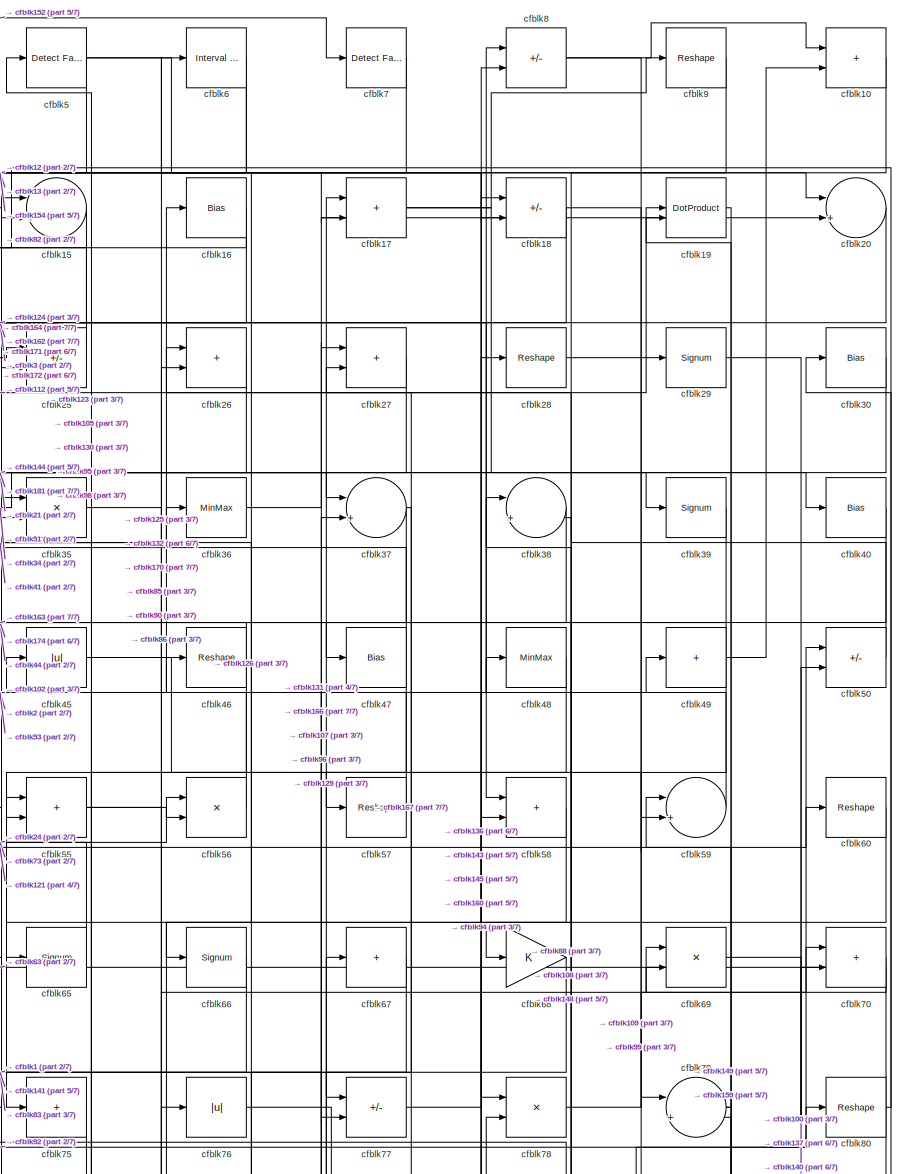
[diagram: root canvas - part 1/7, top right region]
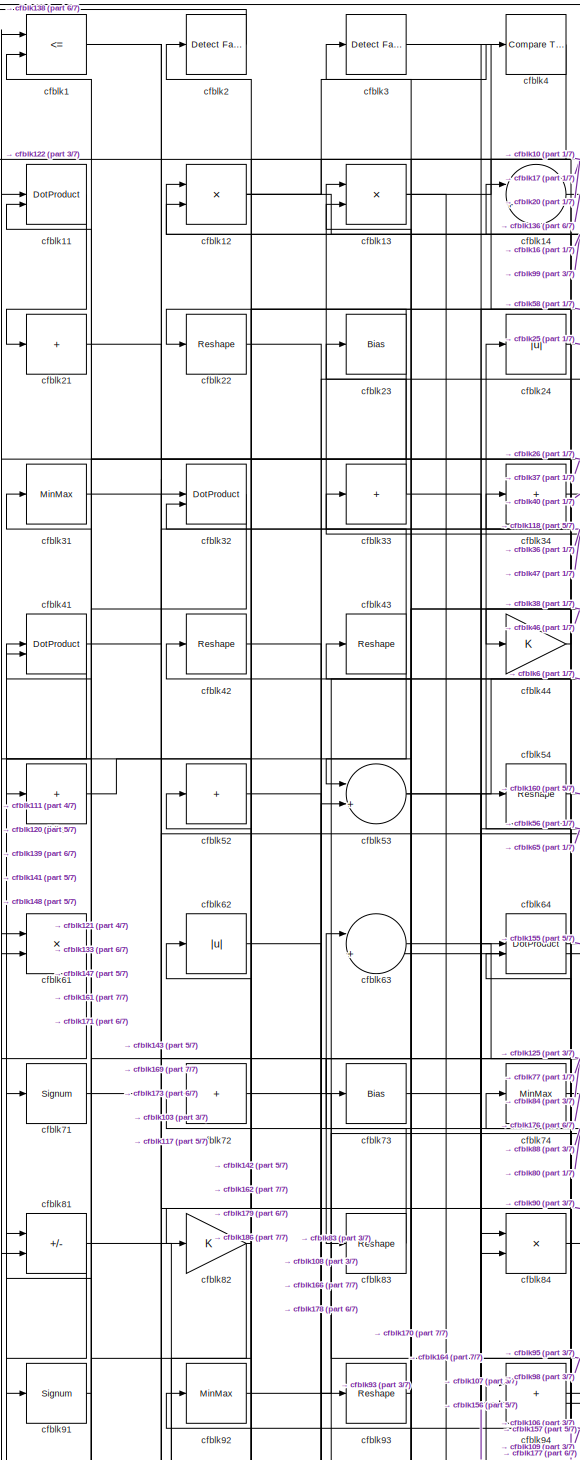
[diagram: root canvas - part 2/7, top left region]
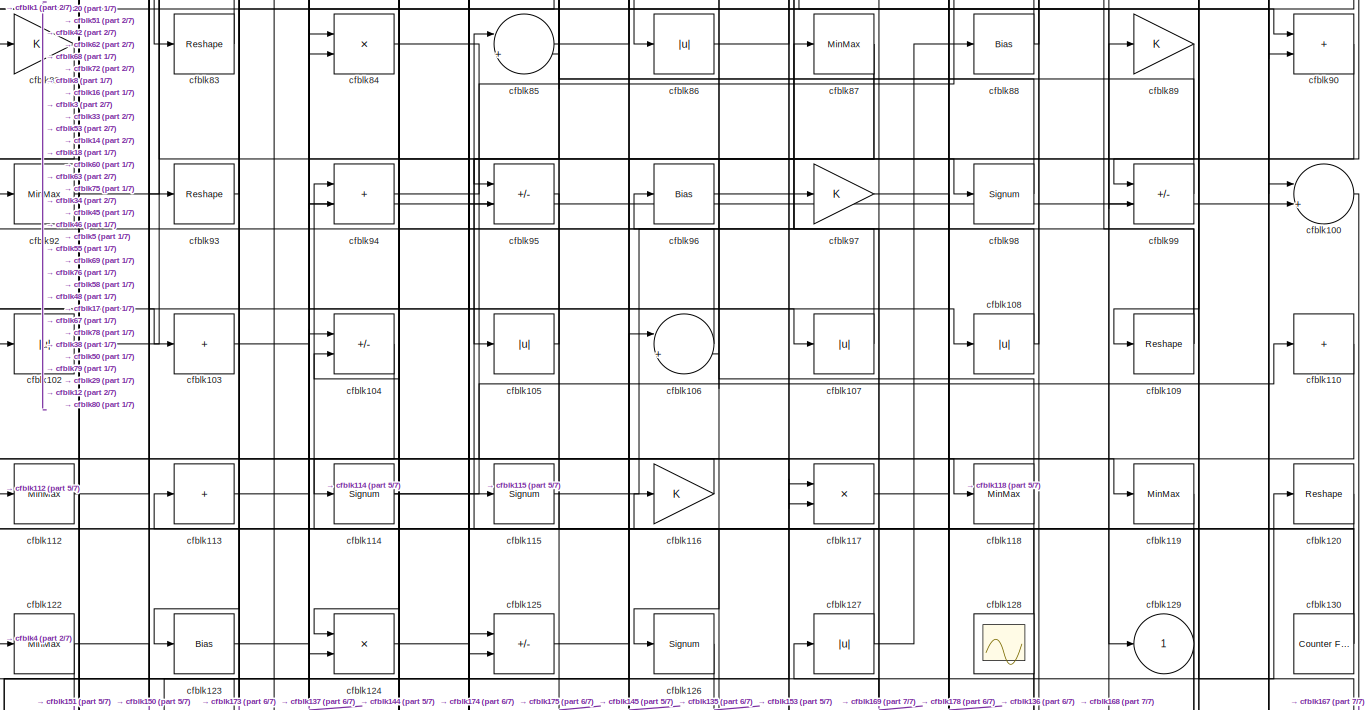
[diagram: root canvas - part 3/7, full width, middle band]
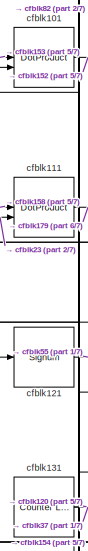
[diagram: root canvas - part 4/7, middle left region]
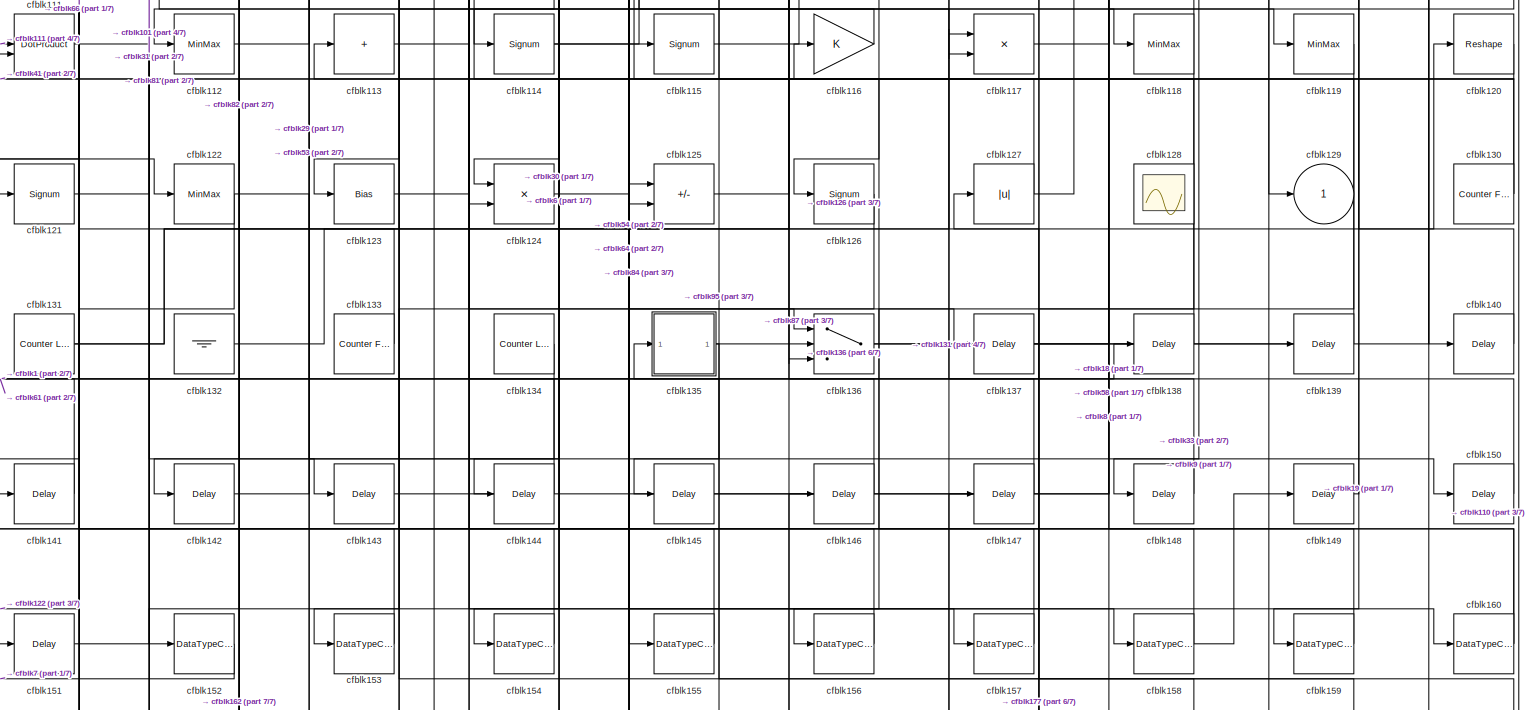
[diagram: root canvas - part 5/7, full width, bottom band]
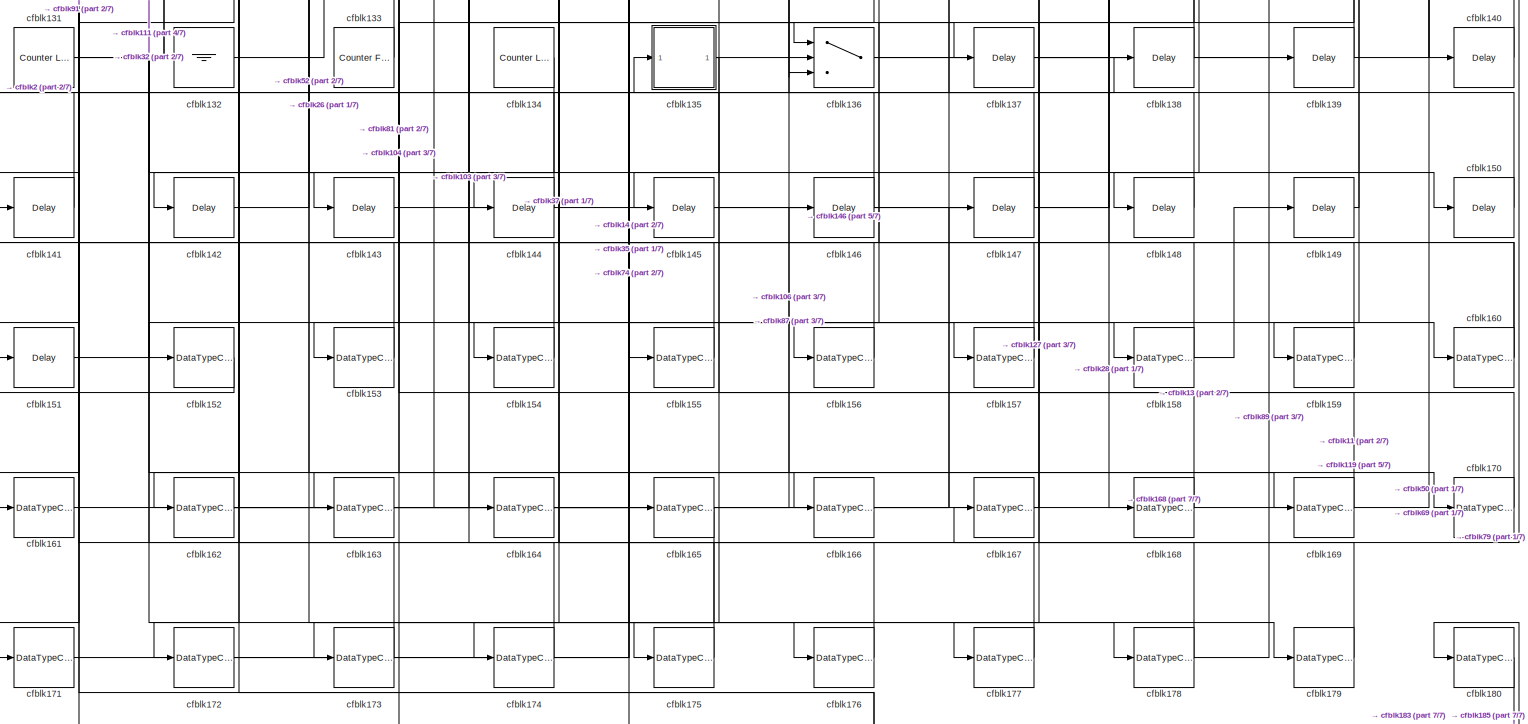
[diagram: root canvas - part 6/7, full width, bottom band]
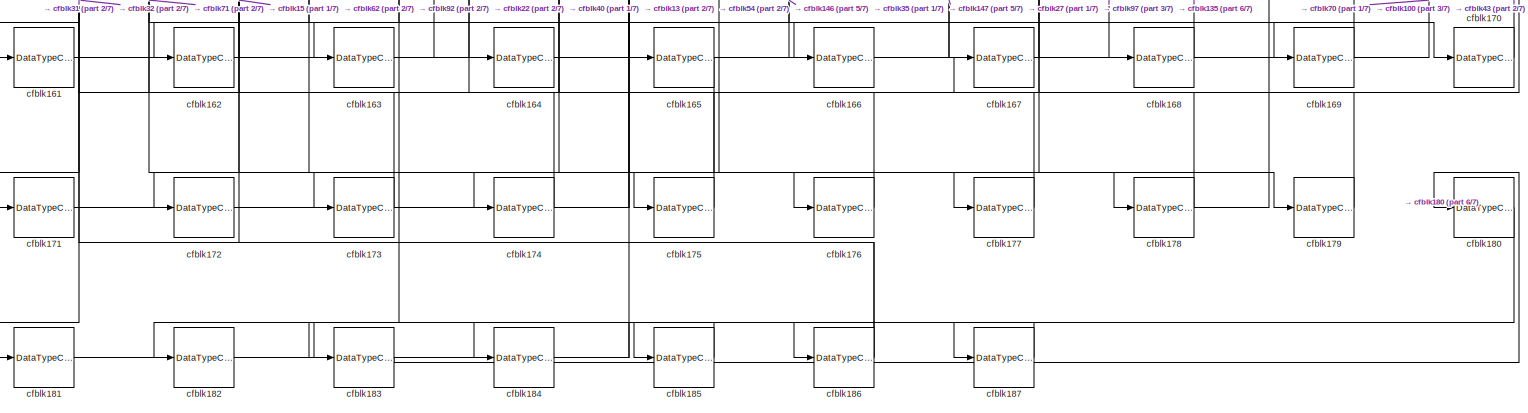
[diagram: root canvas - part 7/7, full width, bottom band]
MODEL slx_10a0aa7fb3e2
KIND model
CONFIG AbsTol = auto
CONFIG EnableMultiTasking = off
CONFIG FixedStep = auto
CONFIG MaxStep = auto
CONFIG MinStep = auto
CONFIG RelTol = 1e-3
CONFIG SampleTimeConstraint = Unconstrained
CONFIG SolverName = VariableStepAuto
CONFIG StartTime = 0.0
CONFIG StopTime = 10.0
BLOCK [RelationalOperator] cfblk1
  InputSameDT = off
  Operator = <=
  OutDataTypeStr = boolean
BLOCK [Sum] cfblk10
  IconShape = rectangular
BLOCK [Sum] cfblk100
  Inputs = |++
BLOCK [DotProduct] cfblk101
  OutDataTypeStr = Inherit: Inherit via internal rule
BLOCK [Abs] cfblk102
  SaturateOnIntegerOverflow = off
BLOCK [Sum] cfblk103
  IconShape = rectangular
  Inputs = +
BLOCK [Sum] cfblk104
  IconShape = rectangular
  Inputs = +-
BLOCK [Abs] cfblk105
  SaturateOnIntegerOverflow = off
BLOCK [Sum] cfblk106
  Inputs = |++
BLOCK [Abs] cfblk107
  SaturateOnIntegerOverflow = off
BLOCK [Abs] cfblk108
  SaturateOnIntegerOverflow = off
BLOCK [Reshape] cfblk109
BLOCK [DotProduct] cfblk11
  OutDataTypeStr = Inherit: Inherit via internal rule
BLOCK [Sum] cfblk110
  IconShape = rectangular
  Inputs = +
BLOCK [DotProduct] cfblk111
  OutDataTypeStr = Inherit: Inherit via internal rule
BLOCK [MinMax] cfblk112
BLOCK [Sum] cfblk113
  IconShape = rectangular
  Inputs = +
BLOCK [Signum] cfblk114
BLOCK [Signum] cfblk115
BLOCK [Gain] cfblk116
BLOCK [Product] cfblk117
  Inputs = */
  RndMeth = Zero
  SaturateOnIntegerOverflow = on
BLOCK [MinMax] cfblk118
BLOCK [MinMax] cfblk119
BLOCK [Product] cfblk12
  Inputs = */
  RndMeth = Zero
  SaturateOnIntegerOverflow = on
BLOCK [Reshape] cfblk120
BLOCK [Signum] cfblk121
BLOCK [MinMax] cfblk122
BLOCK [Bias] cfblk123
  Bias = 0.0
  SaturateOnIntegerOverflow = off
BLOCK [Product] cfblk124
  Inputs = */
  RndMeth = Zero
  SaturateOnIntegerOverflow = on
BLOCK [Sum] cfblk125
  IconShape = rectangular
  Inputs = +-
BLOCK [Signum] cfblk126
BLOCK [Abs] cfblk127
  SaturateOnIntegerOverflow = off
BLOCK [Scope] cfblk128
  Floating = on
  NumInputPorts = 1
  ScopeSpecificationString = Simulink.scopes.TimeScopeBlockCfg('CurrentConfiguration', extmgr.ConfigurationSet(extmgr.Configuration('Core','General UI',true,'FigureColor',[0.156862745098039 0.156862745098039 0.156862745098039]),extmgr.Configuration('Core','Source UI',true),extmgr.Configuration('Sources','WiredSimulink',true,'DataLoggingVariableName','ScopeData1','DataLoggingSaveFormat','StructureWithTime','DataLoggingLimitDat...<+2713ch>
BLOCK [Outport] cfblk129
  VectorParamsAs1DForOutWhenUnconnected = off
BLOCK [Product] cfblk13
  Inputs = */
  RndMeth = Zero
  SaturateOnIntegerOverflow = on
BLOCK [Reference] cfblk130  REF=hdlsllib/Sources/Counter
Free-Running
  SourceBlock = hdlsllib/Sources/Counter\nFree-Running
  SourceType = Counter Free-Running
BLOCK [Reference] cfblk131  REF=hdlsllib/Sources/Counter
Limited
  SourceBlock = hdlsllib/Sources/Counter\nLimited
  SourceType = Counter Limited
BLOCK [Ground] cfblk132
BLOCK [Reference] cfblk133  REF=hdlsllib/Sources/Counter
Free-Running
  SourceBlock = hdlsllib/Sources/Counter\nFree-Running
  SourceType = Counter Free-Running
BLOCK [Reference] cfblk134  REF=hdlsllib/Sources/Counter
Limited
  SourceBlock = hdlsllib/Sources/Counter\nLimited
  SourceType = Counter Limited
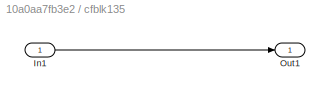
BLOCK [SubSystem] cfblk135
  LibrarySourceBlock = hdlsllib/Ports &\nSubsystems/Subsystem
BLOCK [Inport] cfblk135/In1
BLOCK [Outport] cfblk135/Out1
BLOCK [Switch] cfblk136
  InputSameDT = off
  SaturateOnIntegerOverflow = off
BLOCK [Delay] cfblk137
  InputPortMap = u0
  SampleTime = 1
BLOCK [Delay] cfblk138
  InputPortMap = u0
  SampleTime = 1
BLOCK [Delay] cfblk139
  InputPortMap = u0
  SampleTime = 1
BLOCK [Sum] cfblk14
  Inputs = |++
BLOCK [Delay] cfblk140
  InputPortMap = u0
  SampleTime = 1
BLOCK [Delay] cfblk141
  InputPortMap = u0
  SampleTime = 1
BLOCK [Delay] cfblk142
  InputPortMap = u0
  SampleTime = 1
BLOCK [Delay] cfblk143
  InputPortMap = u0
  SampleTime = 1
BLOCK [Delay] cfblk144
  InputPortMap = u0
  SampleTime = 1
BLOCK [Delay] cfblk145
  InputPortMap = u0
  SampleTime = 1
BLOCK [Delay] cfblk146
  InputPortMap = u0
  SampleTime = 1
BLOCK [Delay] cfblk147
  InputPortMap = u0
  SampleTime = 1
BLOCK [Delay] cfblk148
  InputPortMap = u0
  SampleTime = 1
BLOCK [Delay] cfblk149
  InputPortMap = u0
  SampleTime = 1
BLOCK [Sum] cfblk15
  Inputs = |++
BLOCK [Delay] cfblk150
  InputPortMap = u0
  SampleTime = 1
BLOCK [Delay] cfblk151
  InputPortMap = u0
  SampleTime = 1
BLOCK [DataTypeConversion] cfblk152
  OutDataTypeStr = uint8
  RndMeth = Floor
  SaturateOnIntegerOverflow = off
BLOCK [DataTypeConversion] cfblk153
  OutDataTypeStr = uint8
  RndMeth = Floor
  SaturateOnIntegerOverflow = off
BLOCK [DataTypeConversion] cfblk154
  OutDataTypeStr = uint8
  RndMeth = Floor
  SaturateOnIntegerOverflow = off
BLOCK [DataTypeConversion] cfblk155
  OutDataTypeStr = uint8
  RndMeth = Floor
  SaturateOnIntegerOverflow = off
BLOCK [DataTypeConversion] cfblk156
  OutDataTypeStr = uint8
  RndMeth = Floor
  SaturateOnIntegerOverflow = off
BLOCK [DataTypeConversion] cfblk157
  OutDataTypeStr = uint8
  RndMeth = Floor
  SaturateOnIntegerOverflow = off
BLOCK [DataTypeConversion] cfblk158
  RndMeth = Floor
  SaturateOnIntegerOverflow = off
BLOCK [DataTypeConversion] cfblk159
  OutDataTypeStr = uint8
  RndMeth = Floor
  SaturateOnIntegerOverflow = off
BLOCK [Bias] cfblk16
  Bias = 0.0
  SaturateOnIntegerOverflow = off
BLOCK [DataTypeConversion] cfblk160
  RndMeth = Floor
  SaturateOnIntegerOverflow = off
BLOCK [DataTypeConversion] cfblk161
  OutDataTypeStr = uint8
  RndMeth = Floor
  SaturateOnIntegerOverflow = off
BLOCK [DataTypeConversion] cfblk162
  RndMeth = Floor
  SaturateOnIntegerOverflow = off
BLOCK [DataTypeConversion] cfblk163
  OutDataTypeStr = uint8
  RndMeth = Floor
  SaturateOnIntegerOverflow = off
BLOCK [DataTypeConversion] cfblk164
  OutDataTypeStr = uint8
  RndMeth = Floor
  SaturateOnIntegerOverflow = off
BLOCK [DataTypeConversion] cfblk165
  RndMeth = Floor
  SaturateOnIntegerOverflow = off
BLOCK [DataTypeConversion] cfblk166
  OutDataTypeStr = uint8
  RndMeth = Floor
  SaturateOnIntegerOverflow = off
BLOCK [DataTypeConversion] cfblk167
  OutDataTypeStr = uint8
  RndMeth = Floor
  SaturateOnIntegerOverflow = off
BLOCK [DataTypeConversion] cfblk168
  OutDataTypeStr = uint8
  RndMeth = Floor
  SaturateOnIntegerOverflow = off
BLOCK [DataTypeConversion] cfblk169
  OutDataTypeStr = uint8
  RndMeth = Floor
  SaturateOnIntegerOverflow = off
BLOCK [Sum] cfblk17
  IconShape = rectangular
BLOCK [DataTypeConversion] cfblk170
  OutDataTypeStr = uint8
  RndMeth = Floor
  SaturateOnIntegerOverflow = off
BLOCK [DataTypeConversion] cfblk171
  OutDataTypeStr = uint8
  RndMeth = Floor
  SaturateOnIntegerOverflow = off
BLOCK [DataTypeConversion] cfblk172
  OutDataTypeStr = uint8
  RndMeth = Floor
  SaturateOnIntegerOverflow = off
BLOCK [DataTypeConversion] cfblk173
  OutDataTypeStr = uint8
  RndMeth = Floor
  SaturateOnIntegerOverflow = off
BLOCK [DataTypeConversion] cfblk174
  OutDataTypeStr = uint8
  RndMeth = Floor
  SaturateOnIntegerOverflow = off
BLOCK [DataTypeConversion] cfblk175
  OutDataTypeStr = uint8
  RndMeth = Floor
  SaturateOnIntegerOverflow = off
BLOCK [DataTypeConversion] cfblk176
  OutDataTypeStr = uint8
  RndMeth = Floor
  SaturateOnIntegerOverflow = off
BLOCK [DataTypeConversion] cfblk177
  OutDataTypeStr = uint8
  RndMeth = Floor
  SaturateOnIntegerOverflow = off
BLOCK [DataTypeConversion] cfblk178
  RndMeth = Floor
  SaturateOnIntegerOverflow = off
BLOCK [DataTypeConversion] cfblk179
  OutDataTypeStr = uint8
  RndMeth = Floor
  SaturateOnIntegerOverflow = off
BLOCK [Sum] cfblk18
  IconShape = rectangular
  Inputs = +-
BLOCK [DataTypeConversion] cfblk180
  RndMeth = Floor
  SaturateOnIntegerOverflow = off
BLOCK [DataTypeConversion] cfblk181
  OutDataTypeStr = uint8
  RndMeth = Floor
  SaturateOnIntegerOverflow = off
BLOCK [DataTypeConversion] cfblk182
  RndMeth = Floor
  SaturateOnIntegerOverflow = off
BLOCK [DataTypeConversion] cfblk183
  OutDataTypeStr = uint8
  RndMeth = Floor
  SaturateOnIntegerOverflow = off
BLOCK [DataTypeConversion] cfblk184
  RndMeth = Floor
  SaturateOnIntegerOverflow = off
BLOCK [DataTypeConversion] cfblk185
  OutDataTypeStr = uint8
  RndMeth = Floor
  SaturateOnIntegerOverflow = off
BLOCK [DataTypeConversion] cfblk186
  RndMeth = Floor
  SaturateOnIntegerOverflow = off
BLOCK [DataTypeConversion] cfblk187
  OutDataTypeStr = uint8
  RndMeth = Floor
  SaturateOnIntegerOverflow = off
BLOCK [DotProduct] cfblk19
  OutDataTypeStr = Inherit: Inherit via internal rule
BLOCK [Reference] cfblk2  REF=hdlsllib/Logic and Bit
Operations/Detect Fall
Negative
  SourceBlock = hdlsllib/Logic and Bit\nOperations/Detect Fall\nNegative
  SourceType = Detect Fall Negative
BLOCK [Sum] cfblk20
  Inputs = |++
BLOCK [Sum] cfblk21
  IconShape = rectangular
  Inputs = +
BLOCK [Reshape] cfblk22
BLOCK [Bias] cfblk23
  Bias = 0.0
  SaturateOnIntegerOverflow = off
BLOCK [Abs] cfblk24
  SaturateOnIntegerOverflow = off
BLOCK [Sum] cfblk25
  IconShape = rectangular
  Inputs = +-
BLOCK [Sum] cfblk26
  IconShape = rectangular
BLOCK [Sum] cfblk27
  IconShape = rectangular
BLOCK [Reshape] cfblk28
BLOCK [Signum] cfblk29
BLOCK [Reference] cfblk3  REF=hdlsllib/Logic and Bit
Operations/Detect Fall
Negative
  SourceBlock = hdlsllib/Logic and Bit\nOperations/Detect Fall\nNegative
  SourceType = Detect Fall Negative
BLOCK [Bias] cfblk30
  Bias = 0.0
  SaturateOnIntegerOverflow = off
BLOCK [MinMax] cfblk31
BLOCK [DotProduct] cfblk32
  OutDataTypeStr = Inherit: Inherit via internal rule
BLOCK [Sum] cfblk33
  IconShape = rectangular
  Inputs = +
BLOCK [Sum] cfblk34
  IconShape = rectangular
  Inputs = +
BLOCK [Product] cfblk35
  Inputs = */
  RndMeth = Zero
  SaturateOnIntegerOverflow = on
BLOCK [MinMax] cfblk36
BLOCK [Sum] cfblk37
  Inputs = |++
BLOCK [Sum] cfblk38
  Inputs = |++
BLOCK [Signum] cfblk39
BLOCK [Reference] cfblk4  REF=hdlsllib/Logic and Bit
Operations/Compare
To Zero
  SourceBlock = hdlsllib/Logic and Bit\nOperations/Compare\nTo Zero
  SourceType = Compare To Zero
BLOCK [Bias] cfblk40
  Bias = 0.0
  SaturateOnIntegerOverflow = off
BLOCK [DotProduct] cfblk41
  OutDataTypeStr = Inherit: Inherit via internal rule
BLOCK [Reshape] cfblk42
BLOCK [Reshape] cfblk43
BLOCK [Gain] cfblk44
BLOCK [Abs] cfblk45
  SaturateOnIntegerOverflow = off
BLOCK [Reshape] cfblk46
BLOCK [Bias] cfblk47
  Bias = 0.0
  SaturateOnIntegerOverflow = off
BLOCK [MinMax] cfblk48
BLOCK [Sum] cfblk49
  IconShape = rectangular
  Inputs = +
BLOCK [Reference] cfblk5  REF=hdlsllib/Logic and Bit
Operations/Detect Fall
Negative
  SourceBlock = hdlsllib/Logic and Bit\nOperations/Detect Fall\nNegative
  SourceType = Detect Fall Negative
BLOCK [Sum] cfblk50
  IconShape = rectangular
  Inputs = +-
BLOCK [Sum] cfblk51
  IconShape = rectangular
  Inputs = +
BLOCK [Sum] cfblk52
  IconShape = rectangular
  Inputs = +
BLOCK [Sum] cfblk53
  Inputs = |++
BLOCK [Reshape] cfblk54
BLOCK [Sum] cfblk55
  IconShape = rectangular
BLOCK [Product] cfblk56
  Inputs = */
  RndMeth = Zero
  SaturateOnIntegerOverflow = on
BLOCK [Reshape] cfblk57
BLOCK [Sum] cfblk58
  IconShape = rectangular
BLOCK [Sum] cfblk59
  Inputs = |++
BLOCK [Reference] cfblk6  REF=hdlsllib/Logic and Bit
Operations/Interval Test
  SourceBlock = hdlsllib/Logic and Bit\nOperations/Interval Test
  SourceType = Interval Test
BLOCK [Reshape] cfblk60
BLOCK [Product] cfblk61
  Inputs = */
  RndMeth = Zero
  SaturateOnIntegerOverflow = on
BLOCK [Abs] cfblk62
  SaturateOnIntegerOverflow = off
BLOCK [Sum] cfblk63
  Inputs = |++
BLOCK [DotProduct] cfblk64
  OutDataTypeStr = Inherit: Inherit via internal rule
BLOCK [Signum] cfblk65
BLOCK [Signum] cfblk66
BLOCK [Sum] cfblk67
  IconShape = rectangular
  Inputs = +
BLOCK [Gain] cfblk68
BLOCK [Product] cfblk69
  Inputs = */
  RndMeth = Zero
  SaturateOnIntegerOverflow = on
BLOCK [Reference] cfblk7  REF=hdlsllib/Logic and Bit
Operations/Detect Fall
Negative
  SourceBlock = hdlsllib/Logic and Bit\nOperations/Detect Fall\nNegative
  SourceType = Detect Fall Negative
BLOCK [Sum] cfblk70
  IconShape = rectangular
BLOCK [Signum] cfblk71
BLOCK [Sum] cfblk72
  IconShape = rectangular
  Inputs = +
BLOCK [Bias] cfblk73
  Bias = 0.0
  SaturateOnIntegerOverflow = off
BLOCK [MinMax] cfblk74
BLOCK [Sum] cfblk75
  IconShape = rectangular
  Inputs = +
BLOCK [Abs] cfblk76
  SaturateOnIntegerOverflow = off
BLOCK [Sum] cfblk77
  IconShape = rectangular
  Inputs = +-
BLOCK [Product] cfblk78
  Inputs = */
  RndMeth = Zero
  SaturateOnIntegerOverflow = on
BLOCK [Sum] cfblk79
  Inputs = |++
BLOCK [Sum] cfblk8
  IconShape = rectangular
  Inputs = +-
BLOCK [Reshape] cfblk80
BLOCK [Sum] cfblk81
  IconShape = rectangular
  Inputs = +-
BLOCK [Gain] cfblk82
BLOCK [Reshape] cfblk83
BLOCK [Product] cfblk84
  Inputs = */
  RndMeth = Zero
  SaturateOnIntegerOverflow = on
BLOCK [Sum] cfblk85
  Inputs = |++
BLOCK [Abs] cfblk86
  SaturateOnIntegerOverflow = off
BLOCK [MinMax] cfblk87
BLOCK [Bias] cfblk88
  Bias = 0.0
  SaturateOnIntegerOverflow = off
BLOCK [Gain] cfblk89
BLOCK [Reshape] cfblk9
BLOCK [Sum] cfblk90
  IconShape = rectangular
BLOCK [Signum] cfblk91
BLOCK [MinMax] cfblk92
BLOCK [Reshape] cfblk93
BLOCK [Sum] cfblk94
  IconShape = rectangular
BLOCK [Sum] cfblk95
  IconShape = rectangular
  Inputs = +-
BLOCK [Bias] cfblk96
  Bias = 0.0
  SaturateOnIntegerOverflow = off
BLOCK [Gain] cfblk97
BLOCK [Signum] cfblk98
BLOCK [Sum] cfblk99
  IconShape = rectangular
  Inputs = +-
LINE cfblk100:1 -> cfblk167:1
LINE cfblk101:1 -> cfblk152:1
LINE cfblk102:1 -> cfblk8:1
LINE cfblk103:1 -> cfblk137:1
LINE cfblk104:1 -> cfblk173:1
LINE cfblk105:1 -> cfblk55:1
LINE cfblk106:1 -> cfblk42:1
LINE cfblk107:1 -> cfblk17:1
NET cfblk108:1 -> cfblk38:1, cfblk96:1
NET cfblk109:1 -> cfblk14:2, cfblk50:1
LINE cfblk10:1 -> cfblk73:1
LINE cfblk110:1 -> cfblk112:1
LINE cfblk111:1 -> cfblk179:1
LINE cfblk112:1 -> cfblk29:1
LINE cfblk113:1 -> cfblk158:1
NET cfblk114:1 -> cfblk110:1, cfblk115:1
LINE cfblk115:1 -> cfblk87:1
LINE cfblk116:1 -> cfblk114:1
LINE cfblk117:1 -> cfblk119:1
NET cfblk118:1 -> cfblk156:1, cfblk33:1
LINE cfblk119:1 -> cfblk177:1
LINE cfblk11:1 -> cfblk21:1
LINE cfblk120:1 -> cfblk41:1
LINE cfblk121:1 -> cfblk55:2
NET cfblk122:1 -> cfblk150:1, cfblk151:1
LINE cfblk123:1 -> cfblk100:2
LINE cfblk124:1 -> cfblk60:1
LINE cfblk125:1 -> cfblk69:1
LINE cfblk126:1 -> cfblk153:1
NET cfblk127:1 -> cfblk85:1, cfblk88:1
NET cfblk12:1 -> cfblk17:2, cfblk4:1, cfblk99:1
NET cfblk130:1 -> cfblk5:1, cfblk94:1
NET cfblk131:1 -> cfblk120:1, cfblk37:2
LINE cfblk132:1 -> cfblk26:2
LINE cfblk133:1 -> cfblk81:1
LINE cfblk134:1 -> cfblk172:1
LINE cfblk135/In1:1 -> cfblk135/Out1:1
NET cfblk135:1 -> cfblk106:1, cfblk175:1
NET cfblk136:1 -> cfblk28:1, cfblk89:1
LINE cfblk137:1 -> cfblk50:2
LINE cfblk138:1 -> cfblk13:2
LINE cfblk139:1 -> cfblk11:1
NET cfblk13:1 -> cfblk164:1, cfblk20:1
LINE cfblk140:1 -> cfblk79:2
LINE cfblk141:1 -> cfblk1:1
LINE cfblk142:1 -> cfblk53:2
LINE cfblk143:1 -> cfblk58:2
LINE cfblk144:1 -> cfblk84:1
LINE cfblk145:1 -> cfblk8:2
LINE cfblk146:1 -> cfblk136:2
LINE cfblk147:1 -> cfblk1:2
LINE cfblk148:1 -> cfblk61:1
LINE cfblk149:1 -> cfblk19:2
LINE cfblk14:1 -> cfblk136:1
LINE cfblk150:1 -> cfblk117:1
LINE cfblk151:1 -> cfblk157:1
LINE cfblk152:1 -> cfblk7:1
LINE cfblk153:1 -> cfblk101:1
LINE cfblk154:1 -> cfblk101:2
LINE cfblk155:1 -> cfblk41:2
LINE cfblk156:1 -> cfblk64:1
LINE cfblk157:1 -> cfblk64:2
NET cfblk158:1 -> cfblk111:1, cfblk149:1
LINE cfblk159:1 -> cfblk113:1
LINE cfblk15:1 -> cfblk162:1
NET cfblk160:1 -> cfblk116:1, cfblk18:1
LINE cfblk161:1 -> cfblk54:1
NET cfblk162:1 -> cfblk146:1, cfblk147:1, cfblk62:1, cfblk70:2
LINE cfblk163:1 -> cfblk15:1
LINE cfblk164:1 -> cfblk15:2
LINE cfblk165:1 -> cfblk183:1
LINE cfblk166:1 -> cfblk27:1
LINE cfblk167:1 -> cfblk27:2
LINE cfblk168:1 -> cfblk135:1
LINE cfblk169:1 -> cfblk97:1
NET cfblk16:1 -> cfblk124:2, cfblk12:2
LINE cfblk170:1 -> cfblk43:1
LINE cfblk171:1 -> cfblk35:1
LINE cfblk172:1 -> cfblk35:2
LINE cfblk173:1 -> cfblk32:1
LINE cfblk174:1 -> cfblk104:1
LINE cfblk175:1 -> cfblk104:2
LINE cfblk176:1 -> cfblk11:2
LINE cfblk177:1 -> cfblk74:1
NET cfblk178:1 -> cfblk127:1, cfblk139:1
LINE cfblk179:1 -> cfblk52:1
NET cfblk17:1 -> cfblk39:1, cfblk9:1
LINE cfblk180:1 -> cfblk185:1
LINE cfblk181:1 -> cfblk165:1
LINE cfblk182:1 -> cfblk187:1
LINE cfblk183:1 -> cfblk180:1
LINE cfblk184:1 -> cfblk186:1
LINE cfblk185:1 -> cfblk182:1
NET cfblk186:1 -> cfblk31:1, cfblk92:1
LINE cfblk187:1 -> cfblk184:1
NET cfblk18:1 -> cfblk125:2, cfblk59:2
LINE cfblk19:1 -> cfblk159:1
NET cfblk1:1 -> cfblk77:2, cfblk84:2
LINE cfblk20:1 -> cfblk102:1
LINE cfblk21:1 -> cfblk37:1
LINE cfblk22:1 -> cfblk166:1
NET cfblk23:1 -> cfblk111:2, cfblk22:1
LINE cfblk24:1 -> cfblk25:1
LINE cfblk25:1 -> cfblk12:1
LINE cfblk26:1 -> cfblk51:1
LINE cfblk27:1 -> cfblk181:1
LINE cfblk28:1 -> cfblk19:1
LINE cfblk29:1 -> cfblk100:1
LINE cfblk2:1 -> cfblk138:1
LINE cfblk30:1 -> cfblk144:1
LINE cfblk31:1 -> cfblk143:1
LINE cfblk32:1 -> cfblk161:1
NET cfblk33:1 -> cfblk23:1, cfblk90:2
LINE cfblk34:1 -> cfblk40:1
LINE cfblk35:1 -> cfblk170:1
LINE cfblk36:1 -> cfblk20:2
NET cfblk37:1 -> cfblk174:1, cfblk77:1
LINE cfblk38:1 -> cfblk53:1
LINE cfblk39:1 -> cfblk68:1
NET cfblk3:1 -> cfblk58:1, cfblk95:2
LINE cfblk40:1 -> cfblk163:1
NET cfblk41:1 -> cfblk36:1, cfblk61:2
LINE cfblk42:1 -> cfblk108:1
NET cfblk43:1 -> cfblk32:2, cfblk71:1
LINE cfblk44:1 -> cfblk14:1
LINE cfblk45:1 -> cfblk99:2
NET cfblk46:1 -> cfblk44:1, cfblk95:1
NET cfblk47:1 -> cfblk13:1, cfblk57:1
LINE cfblk48:1 -> cfblk75:1
NET cfblk49:1 -> cfblk10:2, cfblk47:1, cfblk65:1
LINE cfblk4:1 -> cfblk122:1
LINE cfblk50:1 -> cfblk26:1
LINE cfblk51:1 -> cfblk103:1
LINE cfblk52:1 -> cfblk178:1
NET cfblk53:1 -> cfblk107:1, cfblk6:1
LINE cfblk54:1 -> cfblk160:1
NET cfblk55:1 -> cfblk56:2, cfblk90:1
LINE cfblk56:1 -> cfblk2:1
LINE cfblk57:1 -> cfblk46:1
LINE cfblk58:1 -> cfblk86:1
LINE cfblk59:1 -> cfblk16:1
NET cfblk5:1 -> cfblk18:2, cfblk25:2, cfblk78:1
LINE cfblk60:1 -> cfblk85:2
LINE cfblk61:1 -> cfblk81:2
LINE cfblk62:1 -> cfblk93:1
LINE cfblk63:1 -> cfblk125:1
LINE cfblk64:1 -> cfblk155:1
LINE cfblk65:1 -> cfblk24:1
LINE cfblk66:1 -> cfblk141:1
LINE cfblk67:1 -> cfblk126:1
LINE cfblk68:1 -> cfblk83:1
LINE cfblk69:1 -> cfblk140:1
NET cfblk6:1 -> cfblk154:1, cfblk82:1
LINE cfblk70:1 -> cfblk69:2
LINE cfblk71:1 -> cfblk169:1
LINE cfblk72:1 -> cfblk98:1
LINE cfblk73:1 -> cfblk56:1
LINE cfblk74:1 -> cfblk176:1
LINE cfblk75:1 -> cfblk123:1
LINE cfblk76:1 -> cfblk129:1
LINE cfblk77:1 -> cfblk49:1
LINE cfblk78:1 -> cfblk70:1
NET cfblk79:1 -> cfblk109:1, cfblk59:1
LINE cfblk7:1 -> cfblk66:1
NET cfblk80:1 -> cfblk30:1, cfblk63:2, cfblk94:2
NET cfblk81:1 -> cfblk117:2, cfblk91:1
NET cfblk82:1 -> cfblk121:1, cfblk142:1
LINE cfblk83:1 -> cfblk72:1
LINE cfblk84:1 -> cfblk118:1
LINE cfblk85:1 -> cfblk76:1
LINE cfblk86:1 -> cfblk48:1
NET cfblk87:1 -> cfblk106:2, cfblk136:3
NET cfblk88:1 -> cfblk38:2, cfblk63:1
LINE cfblk89:1 -> cfblk105:1
NET cfblk8:1 -> cfblk10:1, cfblk79:1
LINE cfblk90:1 -> cfblk124:1
LINE cfblk91:1 -> cfblk171:1
LINE cfblk92:1 -> cfblk80:1
LINE cfblk93:1 -> cfblk3:1
LINE cfblk94:1 -> cfblk78:2
LINE cfblk95:1 -> cfblk145:1
LINE cfblk96:1 -> cfblk67:1
LINE cfblk97:1 -> cfblk168:1
LINE cfblk98:1 -> cfblk45:1
LINE cfblk99:1 -> cfblk34:1
LINE cfblk9:1 -> cfblk148:1
note: NET lines group one-source signal fan-out (src -> all destinations, sorted); 1:1 wires keep LINE
